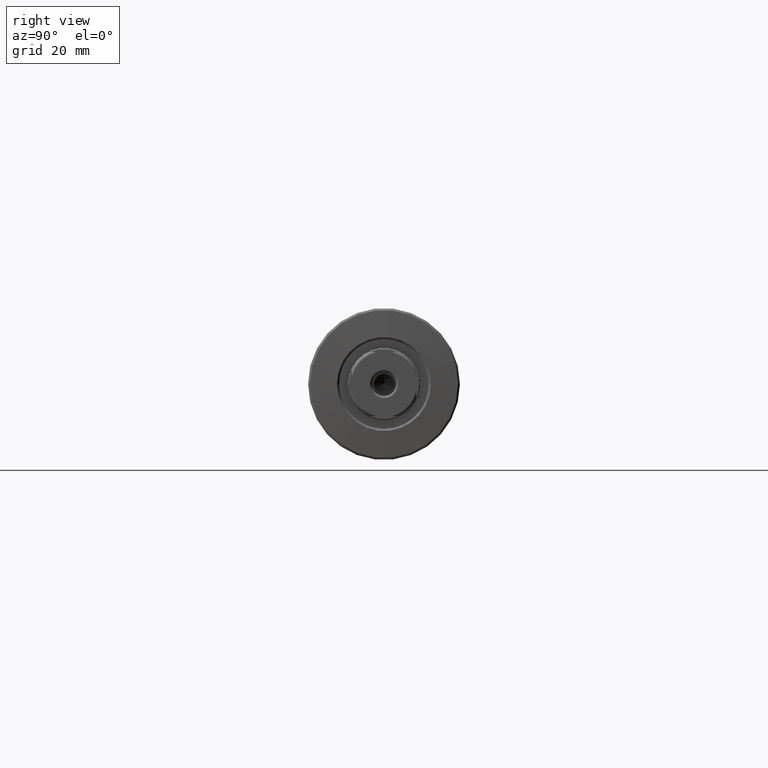
[diagram: clean part render]
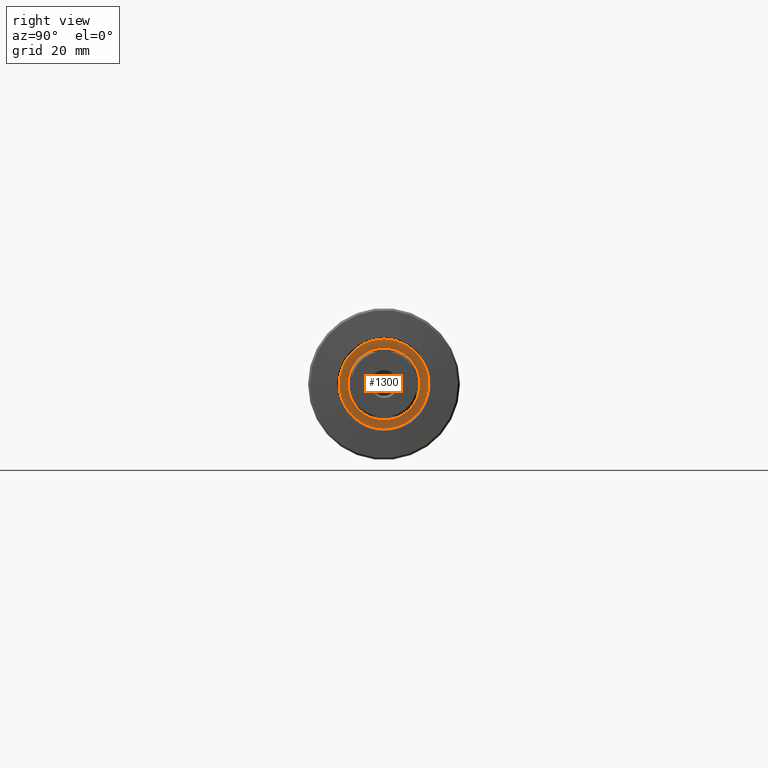
[diagram: same view with one face highlighted and labeled with its STEP entity id]
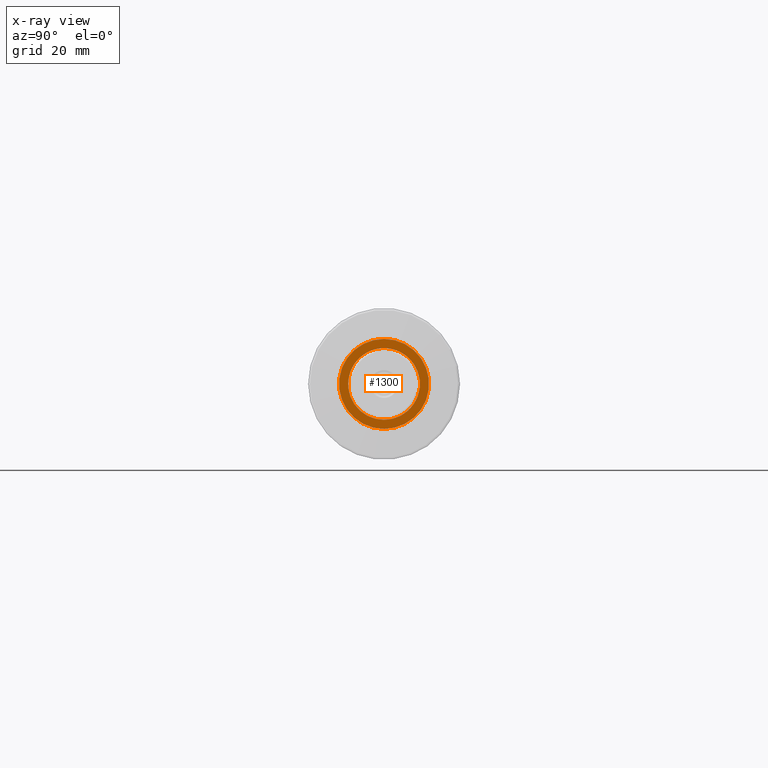
[diagram: x-ray of the same camera — body ghosted, the highlighted face saturated]
A machine part, right view. The second image highlights one B-rep face of the part: STEP entity #1300.
The next image is the same camera in x-ray: the body ghosted, the highlighted face saturated — about 0% of this face is hidden behind the body in this view.
In plain terms, the highlighted planar face has unit normal (1, 0, 0).
Its self-contained STEP definition (entity closure, byte-faithful):
#62 = EDGE_CURVE ( 'NONE', #932, #2319, #2374, .T. ) ;
#142 = DIRECTION ( 'NONE',  ( 1.000000000000000000, 0.000000000000000000, 0.000000000000000000 ) ) ;
#198 = EDGE_CURVE ( 'NONE', #2319, #932, #1526, .T. ) ;
#244 = CARTESIAN_POINT ( 'NONE',  ( -1.500000000000000000, 1.377727649040772586E-15, 11.25000000000000178 ) ) ;
#479 = CIRCLE ( 'NONE', #2381, 11.25000000000000178 ) ;
#542 = PLANE ( 'NONE',  #1686 ) ;
#569 = CARTESIAN_POINT ( 'NONE',  ( -1.500000000000000000, 0.000000000000000000, 0.000000000000000000 ) ) ;
#746 = EDGE_CURVE ( 'NONE', #2196, #2396, #1724, .T. ) ;
#750 = CARTESIAN_POINT ( 'NONE',  ( -1.500000000000000000, 0.000000000000000000, 0.000000000000000000 ) ) ;
#848 = AXIS2_PLACEMENT_3D ( 'NONE', #569, #2429, #1319 ) ;
#902 = CARTESIAN_POINT ( 'NONE',  ( -1.500000000000000000, 1.102182119232617517E-15, 9.000000000000000000 ) ) ;
#932 = VERTEX_POINT ( 'NONE', #902 ) ;
#1008 = CARTESIAN_POINT ( 'NONE',  ( -1.500000000000000000, 0.000000000000000000, -9.000000000000000000 ) ) ;
#1135 = ORIENTED_EDGE ( 'NONE', *, *, #62, .F. ) ;
#1215 = ORIENTED_EDGE ( 'NONE', *, *, #198, .F. ) ;
#1273 = DIRECTION ( 'NONE',  ( 0.000000000000000000, 0.000000000000000000, -1.000000000000000000 ) ) ;
#1300 = ADVANCED_FACE ( 'NONE', ( #1321, #1308 ), #542, .T. ) ;
#1308 = FACE_OUTER_BOUND ( 'NONE', #2352, .T. ) ;
#1319 = DIRECTION ( 'NONE',  ( 0.000000000000000000, 0.000000000000000000, -1.000000000000000000 ) ) ;
#1321 = FACE_BOUND ( 'NONE', #1472, .T. ) ;
#1449 = DIRECTION ( 'NONE',  ( 0.000000000000000000, 0.000000000000000000, -1.000000000000000000 ) ) ;
#1472 = EDGE_LOOP ( 'NONE', ( #1215, #1135 ) ) ;
#1486 = AXIS2_PLACEMENT_3D ( 'NONE', #750, #2239, #1273 ) ;
#1526 = CIRCLE ( 'NONE', #1966, 9.000000000000000000 ) ;
#1601 = DIRECTION ( 'NONE',  ( 1.000000000000000000, 0.000000000000000000, 0.000000000000000000 ) ) ;
#1686 = AXIS2_PLACEMENT_3D ( 'NONE', #2088, #2074, #1703 ) ;
#1703 = DIRECTION ( 'NONE',  ( 0.000000000000000000, 0.000000000000000000, -1.000000000000000000 ) ) ;
#1724 = CIRCLE ( 'NONE', #1486, 11.25000000000000178 ) ;
#1803 = ORIENTED_EDGE ( 'NONE', *, *, #746, .T. ) ;
#1843 = CARTESIAN_POINT ( 'NONE',  ( -1.500000000000000000, 0.000000000000000000, 0.000000000000000000 ) ) ;
#1954 = CARTESIAN_POINT ( 'NONE',  ( -1.500000000000000000, 0.000000000000000000, -11.25000000000000178 ) ) ;
#1966 = AXIS2_PLACEMENT_3D ( 'NONE', #1843, #142, #1449 ) ;
#1992 = DIRECTION ( 'NONE',  ( 0.000000000000000000, 0.000000000000000000, -1.000000000000000000 ) ) ;
#2074 = DIRECTION ( 'NONE',  ( 1.000000000000000000, 0.000000000000000000, 0.000000000000000000 ) ) ;
#2088 = CARTESIAN_POINT ( 'NONE',  ( -1.500000000000000000, 0.000000000000000000, 0.000000000000000000 ) ) ;
#2177 = CARTESIAN_POINT ( 'NONE',  ( -1.500000000000000000, 0.000000000000000000, 0.000000000000000000 ) ) ;
#2196 = VERTEX_POINT ( 'NONE', #1954 ) ;
#2239 = DIRECTION ( 'NONE',  ( 1.000000000000000000, 0.000000000000000000, 0.000000000000000000 ) ) ;
#2244 = ORIENTED_EDGE ( 'NONE', *, *, #2257, .T. ) ;
#2257 = EDGE_CURVE ( 'NONE', #2396, #2196, #479, .T. ) ;
#2319 = VERTEX_POINT ( 'NONE', #1008 ) ;
#2352 = EDGE_LOOP ( 'NONE', ( #1803, #2244 ) ) ;
#2374 = CIRCLE ( 'NONE', #848, 9.000000000000000000 ) ;
#2381 = AXIS2_PLACEMENT_3D ( 'NONE', #2177, #1601, #1992 ) ;
#2396 = VERTEX_POINT ( 'NONE', #244 ) ;
#2429 = DIRECTION ( 'NONE',  ( 1.000000000000000000, 0.000000000000000000, 0.000000000000000000 ) ) ;